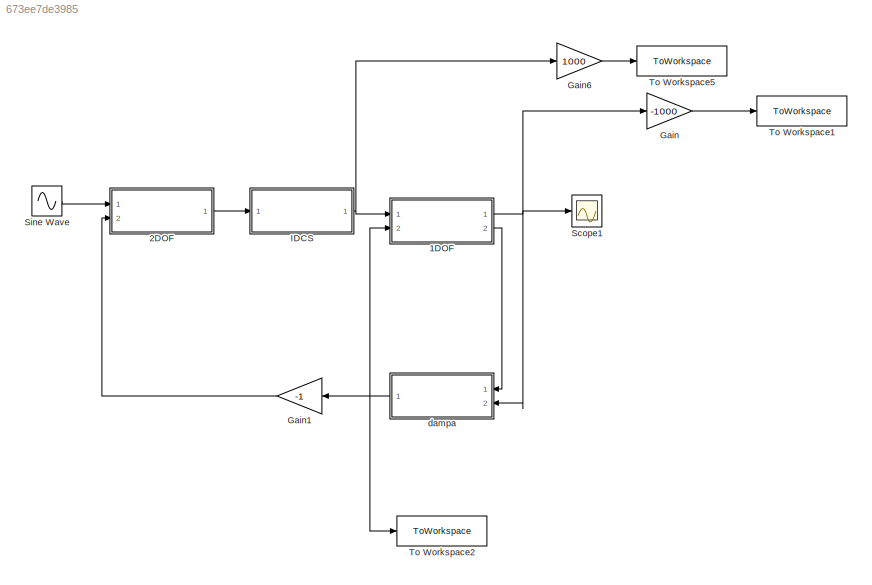
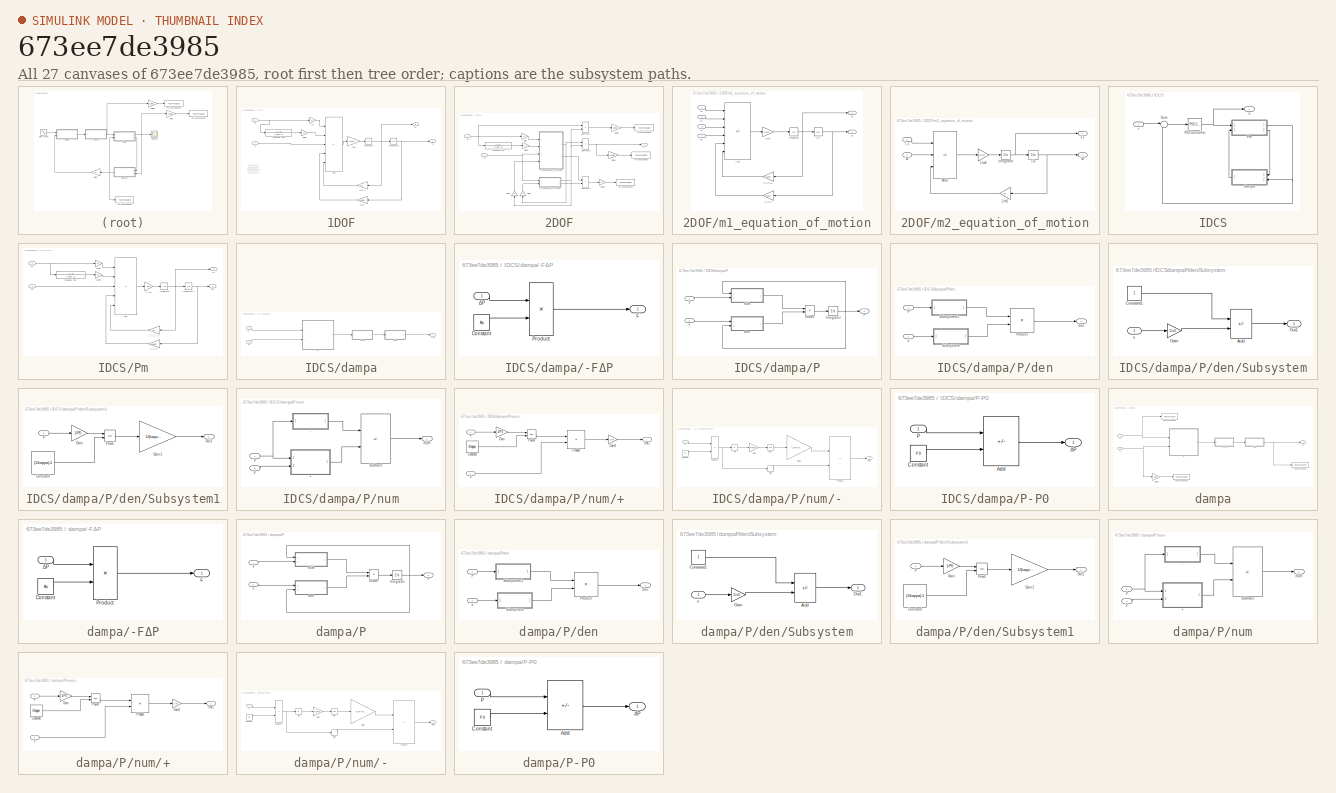
[diagram: thumbnail index - all 27 canvases of the model, root first then tree order]
MODEL slx_673ee7de3985
KIND model
CONFIG AbsTol = auto
CONFIG EnableMultiTasking = off
CONFIG FixedStep = Step_Time
CONFIG MaxStep = auto
CONFIG MinStep = auto
CONFIG RelTol = 1e-3
CONFIG SampleTimeConstraint = Unconstrained
CONFIG Solver = ode4
CONFIG SolverName = ode4
CONFIG StartTime = 0.0
CONFIG StopTime = t_end
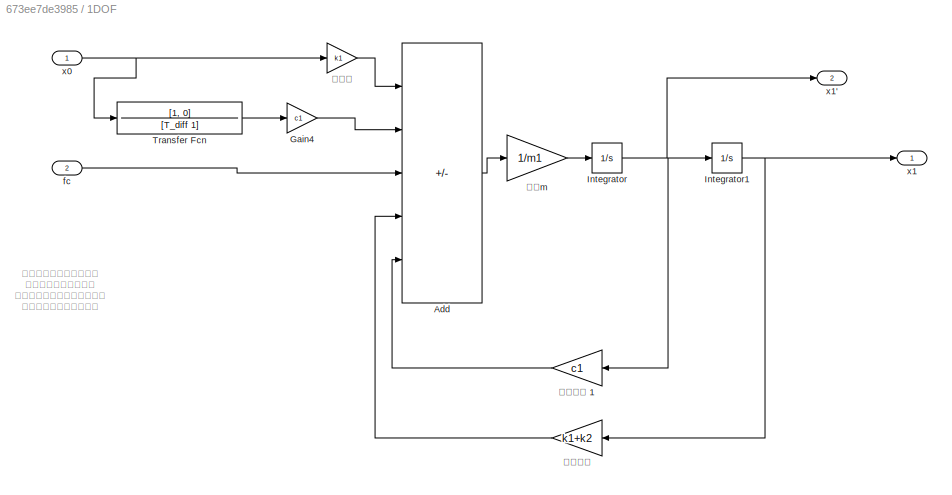
BLOCK [SubSystem] 1DOF
  Ports = [2, 2]
  RequestExecContextInheritance = off
BLOCK [Sum] 1DOF/Add
  IconShape = rectangular
  Inputs = ++---
  Ports = [5, 1]
BLOCK [Gain] 1DOF/Gain4
  Gain = c1
BLOCK [Integrator] 1DOF/Integrator
  Ports = [1, 1]
BLOCK [Integrator] 1DOF/Integrator1
  Ports = [1, 1]
BLOCK [TransferFcn] 1DOF/Transfer Fcn
  Denominator = [T_diff 1]
  NameLocation = right
  Numerator = [1, 0]
BLOCK [Inport] 1DOF/fc
  Port = 2
BLOCK [Inport] 1DOF/x0
BLOCK [Outport] 1DOF/x1
BLOCK [Outport] 1DOF/x1'
  Port = 2
BLOCK [Gain] 1DOF/ばね下
  Gain = k1
BLOCK [Gain] 1DOF/ばね定数 
  Gain = k1+k2
BLOCK [Gain] 1DOF/ばね定数 1
  Gain = c1
BLOCK [Gain] 1DOF/質量m
  Gain = 1/m1
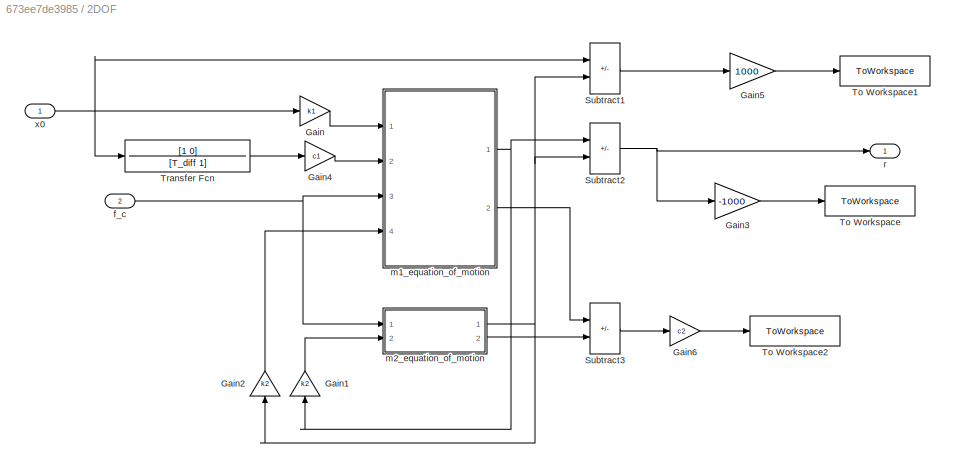
BLOCK [SubSystem] 2DOF
  Ports = [2, 1]
  RequestExecContextInheritance = off
BLOCK [Gain] 2DOF/Gain
  Gain = k1
BLOCK [Gain] 2DOF/Gain1
  Gain = k2
  NameLocation = right
BLOCK [Gain] 2DOF/Gain2
  Gain = k2
  NameLocation = right
BLOCK [Gain] 2DOF/Gain3
  Gain = -1000
BLOCK [Gain] 2DOF/Gain4
  Gain = c1
BLOCK [Gain] 2DOF/Gain5
  Gain = 1000
BLOCK [Gain] 2DOF/Gain6
  Gain = c2
BLOCK [Sum] 2DOF/Subtract1
  IconShape = rectangular
  Inputs = +-
  Ports = [2, 1]
BLOCK [Sum] 2DOF/Subtract2
  IconShape = rectangular
  Inputs = +-
  Ports = [2, 1]
BLOCK [Sum] 2DOF/Subtract3
  IconShape = rectangular
  Inputs = -+
  Ports = [2, 1]
BLOCK [ToWorkspace] 2DOF/To Workspace
  FixptAsFi = on
  MaxDataPoints = inf
  Ports = [1]
  SampleTime = -1
  SaveFormat = Timeseries
  VariableName = r
BLOCK [ToWorkspace] 2DOF/To Workspace1
  FixptAsFi = on
  MaxDataPoints = inf
  Ports = [1]
  SampleTime = -1
  SaveFormat = Timeseries
  VariableName = u_rela
BLOCK [ToWorkspace] 2DOF/To Workspace2
  FixptAsFi = on
  MaxDataPoints = inf
  Ports = [1]
  SampleTime = -1
  SaveFormat = Timeseries
  VariableName = F_analysis
BLOCK [TransferFcn] 2DOF/Transfer Fcn
  Denominator = [T_diff 1]
  Numerator = [1 0]
BLOCK [Inport] 2DOF/f_c
  Port = 2
BLOCK [SubSystem] 2DOF/m1_equation_of_motion
  Ports = [4, 2]
  RequestExecContextInheritance = off
BLOCK [Gain] 2DOF/m1_equation_of_motion/1//m1
  Gain = 1/m1
BLOCK [Integrator] 2DOF/m1_equation_of_motion/1//s
  Ports = [1, 1]
BLOCK [Sum] 2DOF/m1_equation_of_motion/Add
  IconShape = rectangular
  Inputs = ++++--
  Ports = [6, 1]
BLOCK [Inport] 2DOF/m1_equation_of_motion/c1
  Port = 2
BLOCK [Inport] 2DOF/m1_equation_of_motion/fc
  Port = 3
BLOCK [Integrator] 2DOF/m1_equation_of_motion/integrator
  Ports = [1, 1]
BLOCK [Inport] 2DOF/m1_equation_of_motion/k1
  IconDisplay = Port number and signal name
BLOCK [Inport] 2DOF/m1_equation_of_motion/k2
  Port = 4
BLOCK [Outport] 2DOF/m1_equation_of_motion/x'1
  Port = 2
BLOCK [Outport] 2DOF/m1_equation_of_motion/x1
BLOCK [Gain] 2DOF/m1_equation_of_motion/ばね定数
  Gain = k1+k2
BLOCK [Gain] 2DOF/m1_equation_of_motion/ばね定数1
  Gain = c1+c2
BLOCK [SubSystem] 2DOF/m2_equation_of_motion
  Ports = [2, 2]
  RequestExecContextInheritance = off
BLOCK [Gain] 2DOF/m2_equation_of_motion/1//m1
  Gain = k2
BLOCK [Gain] 2DOF/m2_equation_of_motion/1//m2
  Gain = 1/m2
BLOCK [Integrator] 2DOF/m2_equation_of_motion/1//s
  Ports = [1, 1]
BLOCK [Sum] 2DOF/m2_equation_of_motion/Add
  IconShape = rectangular
  Inputs = -+-
  Ports = [3, 1]
BLOCK [Inport] 2DOF/m2_equation_of_motion/f_c
  IconDisplay = Port number and signal name
BLOCK [Integrator] 2DOF/m2_equation_of_motion/integrator
  Ports = [1, 1]
BLOCK [Inport] 2DOF/m2_equation_of_motion/k2 
  Port = 2
BLOCK [Outport] 2DOF/m2_equation_of_motion/x'2
  Port = 2
BLOCK [Outport] 2DOF/m2_equation_of_motion/x2
BLOCK [Outport] 2DOF/r
BLOCK [Inport] 2DOF/x0
BLOCK [Gain] Gain
  Gain = -1000
BLOCK [Gain] Gain1
  Gain = -1
BLOCK [Gain] Gain6
  Gain = 1000
BLOCK [SubSystem] IDCS
  Ports = [1, 1]
  RequestExecContextInheritance = off
BLOCK [Reference] IDCS/PID Controller  REF=simulink/Continuous/PID Controller
  Ports = [1, 1]
  SourceBlock = simulink/Continuous/PID Controller
  SourceProductBaseCode = SL
  SourceType = PID 1dof
BLOCK [SubSystem] IDCS/Pm
  Ports = [2, 2]
  RequestExecContextInheritance = off
BLOCK [Sum] IDCS/Pm/Add
  IconShape = rectangular
  Inputs = ++---
  Ports = [5, 1]
BLOCK [Gain] IDCS/Pm/Gain
  Gain = k1
BLOCK [Gain] IDCS/Pm/Gain4
  Gain = c1
BLOCK [Integrator] IDCS/Pm/Integrator
  Ports = [1, 1]
BLOCK [Integrator] IDCS/Pm/Integrator1
  Ports = [1, 1]
BLOCK [TransferFcn] IDCS/Pm/Transfer Fcn
  Denominator = [T_diff 1]
  Numerator = [1, 0]
BLOCK [Inport] IDCS/Pm/fc
  Port = 2
BLOCK [Inport] IDCS/Pm/x0
BLOCK [Outport] IDCS/Pm/x1
BLOCK [Outport] IDCS/Pm/x1'
  Port = 2
BLOCK [Gain] IDCS/Pm/ばね定数 
  Gain = k1+k2
BLOCK [Gain] IDCS/Pm/ばね定数 1
  Gain = c1
BLOCK [Gain] IDCS/Pm/質量m
  Gain = 1/m1
BLOCK [Sum] IDCS/Sum
  Inputs = |+-
  Ports = [2, 1]
BLOCK [SubSystem] IDCS/dampa
  Ports = [2, 1]
  RequestExecContextInheritance = off
BLOCK [SubSystem] IDCS/dampa/-FΔP
  Ports = [1, 1]
  RequestExecContextInheritance = off
BLOCK [Constant] IDCS/dampa/-FΔP/Constant
  Value = Ap
BLOCK [Outport] IDCS/dampa/-FΔP/F
BLOCK [Product] IDCS/dampa/-FΔP/Product
  Ports = [2, 1]
BLOCK [Inport] IDCS/dampa/-FΔP/ΔP
BLOCK [SubSystem] IDCS/dampa/P
  Ports = [2, 1]
  RequestExecContextInheritance = off
BLOCK [SubSystem] IDCS/dampa/P-P0
  Ports = [1, 1]
  RequestExecContextInheritance = off
BLOCK [Sum] IDCS/dampa/P-P0/Add
  IconShape = rectangular
  Inputs = +-
  Ports = [2, 1]
BLOCK [Constant] IDCS/dampa/P-P0/Constant
  Value = P0
BLOCK [Inport] IDCS/dampa/P-P0/P
BLOCK [Outport] IDCS/dampa/P-P0/ΔP
BLOCK [Product] IDCS/dampa/P/Divide
  Inputs = */
  Ports = [2, 1]
BLOCK [Integrator] IDCS/dampa/P/Integrator
  InitialCondition = P0
  Ports = [1, 1]
BLOCK [Outport] IDCS/dampa/P/P
BLOCK [Inport] IDCS/dampa/P/V
BLOCK [SubSystem] IDCS/dampa/P/den
  Ports = [2, 1]
  RequestExecContextInheritance = off
BLOCK [Inport] IDCS/dampa/P/den/P
  Port = 2
BLOCK [Product] IDCS/dampa/P/den/Product
  Ports = [2, 1]
BLOCK [SubSystem] IDCS/dampa/P/den/Subsystem
  Ports = [1, 1]
  RequestExecContextInheritance = off
BLOCK [Sum] IDCS/dampa/P/den/Subsystem/Add
  IconShape = rectangular
  Inputs = +-
  Ports = [2, 1]
BLOCK [Constant] IDCS/dampa/P/den/Subsystem/Constant1
BLOCK [Gain] IDCS/dampa/P/den/Subsystem/Gain
  Gain = 1/x0
BLOCK [Outport] IDCS/dampa/P/den/Subsystem/Out1
BLOCK [Inport] IDCS/dampa/P/den/Subsystem/x
BLOCK [SubSystem] IDCS/dampa/P/den/Subsystem1
  Ports = [1, 1]
  RequestExecContextInheritance = off
BLOCK [Constant] IDCS/dampa/P/den/Subsystem1/Constant
  Value = (1/kappa)-1
BLOCK [Gain] IDCS/dampa/P/den/Subsystem1/Gain
  Gain = 1/P0
BLOCK [Gain] IDCS/dampa/P/den/Subsystem1/Gain1
  Gain = 1/(kappa*P0)
BLOCK [Outport] IDCS/dampa/P/den/Subsystem1/Out1
BLOCK [Inport] IDCS/dampa/P/den/Subsystem1/P
BLOCK [Math] IDCS/dampa/P/den/Subsystem1/Pow1
  Operator = pow
  OutputSignalType = real
  Ports = [2, 1]
  SignedPower = on
BLOCK [Outport] IDCS/dampa/P/den/den
BLOCK [Inport] IDCS/dampa/P/den/x
BLOCK [SubSystem] IDCS/dampa/P/num
  Ports = [2, 1]
  RequestExecContextInheritance = off
BLOCK [SubSystem] IDCS/dampa/P/num/+
  Ports = [2, 1]
  RequestExecContextInheritance = off
BLOCK [Constant] IDCS/dampa/P/num/+/Constant
  Value = 1/kappa
BLOCK [Gain] IDCS/dampa/P/num/+/Gain
  Gain = 1/P0
BLOCK [Gain] IDCS/dampa/P/num/+/Gain1
  Gain = 1/x0
BLOCK [Outport] IDCS/dampa/P/num/+/Out1
BLOCK [Inport] IDCS/dampa/P/num/+/P
BLOCK [Math] IDCS/dampa/P/num/+/Power
  Operator = pow
  OutputSignalType = real
  Ports = [2, 1]
  SignedPower = on
BLOCK [Product] IDCS/dampa/P/num/+/Product
  Ports = [2, 1]
BLOCK [Inport] IDCS/dampa/P/num/+/V
  Port = 2
BLOCK [SubSystem] IDCS/dampa/P/num/-
  Ports = [1, 1]
  RequestExecContextInheritance = off
BLOCK [Abs] IDCS/dampa/P/num/-/Abs
  SaturateOnIntegerOverflow = off
BLOCK [Constant] IDCS/dampa/P/num/-/Constant
  Value = P0
BLOCK [Gain] IDCS/dampa/P/num/-/Gain
  Gain = 2*row0
BLOCK [Gain] IDCS/dampa/P/num/-/Gain1
  Gain = (Cor*Aor)/(row0*Ap*x0)
BLOCK [Outport] IDCS/dampa/P/num/-/Out1
BLOCK [Inport] IDCS/dampa/P/num/-/P
BLOCK [Product] IDCS/dampa/P/num/-/Product
  Ports = [2, 1]
BLOCK [Signum] IDCS/dampa/P/num/-/Sign
BLOCK [Sqrt] IDCS/dampa/P/num/-/Sqrt
BLOCK [Sum] IDCS/dampa/P/num/-/Subtract
  IconShape = rectangular
  Inputs = +-
  Ports = [2, 1]
BLOCK [Inport] IDCS/dampa/P/num/P
BLOCK [Sum] IDCS/dampa/P/num/Subtract
  IconShape = rectangular
  Inputs = -+
  Ports = [2, 1]
BLOCK [Inport] IDCS/dampa/P/num/V
  Port = 2
BLOCK [Outport] IDCS/dampa/P/num/num
BLOCK [Inport] IDCS/dampa/P/x
  Port = 2
BLOCK [Outport] IDCS/dampa/f_c
BLOCK [Inport] IDCS/dampa/x1
  Port = 2
BLOCK [Inport] IDCS/dampa/x1'
BLOCK [Inport] IDCS/r
BLOCK [Outport] IDCS/u
BLOCK [Scope] Scope1
  Floating = off
  NumInputPorts = 1
  Ports = [1]
  ScopeSpecificationString = Simulink.scopes.TimeScopeBlockCfg('CurrentConfiguration', extmgr.ConfigurationSet(extmgr.Configuration('Core','General UI',true),extmgr.Configuration('Core','Source UI',true),extmgr.Configuration('Sources','WiredSimulink',true),extmgr.Configuration('Visuals','Time Domain',true,'SerializedDisplays',{struct('MinYLimReal','-126.80577','MaxYLimReal','33.38913','YLabelReal','','MinYLimMag',' 0.00000','...<+1363ch>
BLOCK [Sin] Sine Wave
  Amplitude = A
  Bias = B
  Frequency = Hz
  Ports = [0, 1]
  SampleTime = 0
BLOCK [ToWorkspace] To Workspace1
  FixptAsFi = on
  MaxDataPoints = inf
  Ports = [1]
  SampleTime = -1
  SaveFormat = Timeseries
  VariableName = x
BLOCK [ToWorkspace] To Workspace2
  FixptAsFi = on
  MaxDataPoints = inf
  Ports = [1]
  SampleTime = -1
  SaveFormat = Timeseries
  VariableName = F_hard
BLOCK [ToWorkspace] To Workspace5
  FixptAsFi = on
  MaxDataPoints = inf
  Ports = [1]
  SampleTime = -1
  SaveFormat = Timeseries
  VariableName = u
BLOCK [SubSystem] dampa
  Ports = [2, 1]
  RequestExecContextInheritance = off
BLOCK [SubSystem] dampa/-FΔP
  Ports = [1, 1]
  RequestExecContextInheritance = off
BLOCK [Constant] dampa/-FΔP/Constant
  Value = Ap
BLOCK [Outport] dampa/-FΔP/F
BLOCK [Product] dampa/-FΔP/Product
  Ports = [2, 1]
BLOCK [Inport] dampa/-FΔP/ΔP
BLOCK [Gain] dampa/Gain3
  Gain = 1000
BLOCK [SubSystem] dampa/P
  Ports = [2, 1]
  RequestExecContextInheritance = off
BLOCK [SubSystem] dampa/P-P0
  Ports = [1, 1]
  RequestExecContextInheritance = off
BLOCK [Sum] dampa/P-P0/Add
  IconShape = rectangular
  Inputs = +-
  Ports = [2, 1]
BLOCK [Constant] dampa/P-P0/Constant
  Value = P0
BLOCK [Inport] dampa/P-P0/P
BLOCK [Outport] dampa/P-P0/ΔP
BLOCK [Product] dampa/P/Divide
  Inputs = */
  Ports = [2, 1]
BLOCK [Integrator] dampa/P/Integrator
  InitialCondition = P0
  Ports = [1, 1]
BLOCK [Outport] dampa/P/P
BLOCK [Inport] dampa/P/V
BLOCK [SubSystem] dampa/P/den
  Ports = [2, 1]
  RequestExecContextInheritance = off
BLOCK [Inport] dampa/P/den/P
  Port = 2
BLOCK [Product] dampa/P/den/Product
  Ports = [2, 1]
BLOCK [SubSystem] dampa/P/den/Subsystem
  Ports = [1, 1]
  RequestExecContextInheritance = off
BLOCK [Sum] dampa/P/den/Subsystem/Add
  IconShape = rectangular
  Inputs = +-
  Ports = [2, 1]
BLOCK [Constant] dampa/P/den/Subsystem/Constant1
BLOCK [Gain] dampa/P/den/Subsystem/Gain
  Gain = 1/x0
BLOCK [Outport] dampa/P/den/Subsystem/Out1
BLOCK [Inport] dampa/P/den/Subsystem/x
BLOCK [SubSystem] dampa/P/den/Subsystem1
  Ports = [1, 1]
  RequestExecContextInheritance = off
BLOCK [Constant] dampa/P/den/Subsystem1/Constant
  Value = (1/kappa)-1
BLOCK [Gain] dampa/P/den/Subsystem1/Gain
  Gain = 1/P0
BLOCK [Gain] dampa/P/den/Subsystem1/Gain1
  Gain = 1/(kappa*P0)
BLOCK [Outport] dampa/P/den/Subsystem1/Out1
BLOCK [Inport] dampa/P/den/Subsystem1/P
BLOCK [Math] dampa/P/den/Subsystem1/Pow1
  Operator = pow
  OutputSignalType = real
  Ports = [2, 1]
  SignedPower = on
BLOCK [Outport] dampa/P/den/den
BLOCK [Inport] dampa/P/den/x
BLOCK [SubSystem] dampa/P/num
  Ports = [2, 1]
  RequestExecContextInheritance = off
BLOCK [SubSystem] dampa/P/num/+
  Ports = [2, 1]
  RequestExecContextInheritance = off
BLOCK [Constant] dampa/P/num/+/Constant
  Value = 1/kappa
BLOCK [Gain] dampa/P/num/+/Gain
  Gain = 1/P0
BLOCK [Gain] dampa/P/num/+/Gain1
  Gain = 1/x0
BLOCK [Outport] dampa/P/num/+/Out1
BLOCK [Inport] dampa/P/num/+/P
BLOCK [Math] dampa/P/num/+/Power
  Operator = pow
  OutputSignalType = real
  Ports = [2, 1]
  SignedPower = on
BLOCK [Product] dampa/P/num/+/Product
  Ports = [2, 1]
BLOCK [Inport] dampa/P/num/+/V
  Port = 2
BLOCK [SubSystem] dampa/P/num/-
  Ports = [1, 1]
  RequestExecContextInheritance = off
BLOCK [Abs] dampa/P/num/-/Abs
  SaturateOnIntegerOverflow = off
BLOCK [Constant] dampa/P/num/-/Constant
  Value = P0
BLOCK [Gain] dampa/P/num/-/Gain
  Gain = 2*row0
BLOCK [Gain] dampa/P/num/-/Gain1
  Gain = (Cor*Aor)/(row0*Ap*x0)
BLOCK [Outport] dampa/P/num/-/Out1
BLOCK [Inport] dampa/P/num/-/P
BLOCK [Product] dampa/P/num/-/Product
  Ports = [2, 1]
BLOCK [Signum] dampa/P/num/-/Sign
BLOCK [Sqrt] dampa/P/num/-/Sqrt
BLOCK [Sum] dampa/P/num/-/Subtract
  IconShape = rectangular
  Inputs = +-
  Ports = [2, 1]
BLOCK [Inport] dampa/P/num/P
BLOCK [Sum] dampa/P/num/Subtract
  IconShape = rectangular
  Inputs = -+
  Ports = [2, 1]
BLOCK [Inport] dampa/P/num/V
  Port = 2
BLOCK [Outport] dampa/P/num/num
BLOCK [Inport] dampa/P/x
  Port = 2
BLOCK [ToWorkspace] dampa/To Workspace
  FixptAsFi = on
  MaxDataPoints = inf
  Ports = [1]
  SampleTime = -1
  SaveFormat = Timeseries
  VariableName = F_IDCS
BLOCK [ToWorkspace] dampa/To Workspace1
  FixptAsFi = on
  MaxDataPoints = inf
  Ports = [1]
  SampleTime = -1
  SaveFormat = Timeseries
  VariableName = X
BLOCK [ToWorkspace] dampa/To Workspace2
  FixptAsFi = on
  MaxDataPoints = inf
  Ports = [1]
  SampleTime = -1
  SaveFormat = Timeseries
  VariableName = V
BLOCK [Outport] dampa/f_c
BLOCK [Inport] dampa/x1
  Port = 2
BLOCK [Inport] dampa/x1'
ANNOTATION 1DOF: ばね下ダンパを入れれば エラーは解決するよ～ モデル化誤差のせいなのかも 検証したほうがいいかも
LINE 1DOF/Add:1 -> 1DOF/質量m:1
LINE 1DOF/Gain4:1 -> 1DOF/Add:2
NET 1DOF/Integrator1:1 -> 1DOF/x1:1, 1DOF/ばね定数 :1
NET 1DOF/Integrator:1 -> 1DOF/Integrator1:1, 1DOF/x1':1, 1DOF/ばね定数 1:1
LINE 1DOF/Transfer Fcn:1 -> 1DOF/Gain4:1
LINE 1DOF/fc:1 -> 1DOF/Add:3
NET 1DOF/x0:1 -> 1DOF/Transfer Fcn:1, 1DOF/ばね下:1
LINE 1DOF/ばね下:1 -> 1DOF/Add:1
LINE 1DOF/ばね定数 1:1 -> 1DOF/Add:5
LINE 1DOF/ばね定数 :1 -> 1DOF/Add:4
LINE 1DOF/質量m:1 -> 1DOF/Integrator:1
NET 1DOF:1 -> Gain:1, Scope1:1, dampa:2
LINE 1DOF:2 -> dampa:1
LINE 2DOF/Gain1:1 -> 2DOF/m2_equation_of_motion:2
LINE 2DOF/Gain2:1 -> 2DOF/m1_equation_of_motion:4
LINE 2DOF/Gain3:1 -> 2DOF/To Workspace:1
LINE 2DOF/Gain4:1 -> 2DOF/m1_equation_of_motion:2
LINE 2DOF/Gain5:1 -> 2DOF/To Workspace1:1
LINE 2DOF/Gain6:1 -> 2DOF/To Workspace2:1
LINE 2DOF/Gain:1 -> 2DOF/m1_equation_of_motion:1
LINE 2DOF/Subtract1:1 -> 2DOF/Gain5:1
NET 2DOF/Subtract2:1 -> 2DOF/Gain3:1, 2DOF/r:1
LINE 2DOF/Subtract3:1 -> 2DOF/Gain6:1
LINE 2DOF/Transfer Fcn:1 -> 2DOF/Gain4:1
NET 2DOF/f_c:1 -> 2DOF/m1_equation_of_motion:3, 2DOF/m2_equation_of_motion:1
LINE 2DOF/m1_equation_of_motion/1//m1:1 -> 2DOF/m1_equation_of_motion/integrator:1
NET 2DOF/m1_equation_of_motion/1//s:1 -> 2DOF/m1_equation_of_motion/x1:1, 2DOF/m1_equation_of_motion/ばね定数:1
LINE 2DOF/m1_equation_of_motion/Add:1 -> 2DOF/m1_equation_of_motion/1//m1:1
LINE 2DOF/m1_equation_of_motion/c1:1 -> 2DOF/m1_equation_of_motion/Add:2
LINE 2DOF/m1_equation_of_motion/fc:1 -> 2DOF/m1_equation_of_motion/Add:3
NET 2DOF/m1_equation_of_motion/integrator:1 -> 2DOF/m1_equation_of_motion/1//s:1, 2DOF/m1_equation_of_motion/x'1:1, 2DOF/m1_equation_of_motion/ばね定数1:1
LINE 2DOF/m1_equation_of_motion/k1:1 -> 2DOF/m1_equation_of_motion/Add:1
LINE 2DOF/m1_equation_of_motion/k2:1 -> 2DOF/m1_equation_of_motion/Add:4
LINE 2DOF/m1_equation_of_motion/ばね定数1:1 -> 2DOF/m1_equation_of_motion/Add:6
LINE 2DOF/m1_equation_of_motion/ばね定数:1 -> 2DOF/m1_equation_of_motion/Add:5
NET 2DOF/m1_equation_of_motion:1 -> 2DOF/Gain1:1, 2DOF/Subtract2:1
LINE 2DOF/m1_equation_of_motion:2 -> 2DOF/Subtract3:1
LINE 2DOF/m2_equation_of_motion/1//m1:1 -> 2DOF/m2_equation_of_motion/Add:3
LINE 2DOF/m2_equation_of_motion/1//m2:1 -> 2DOF/m2_equation_of_motion/integrator:1
NET 2DOF/m2_equation_of_motion/1//s:1 -> 2DOF/m2_equation_of_motion/1//m1:1, 2DOF/m2_equation_of_motion/x2:1
LINE 2DOF/m2_equation_of_motion/Add:1 -> 2DOF/m2_equation_of_motion/1//m2:1
LINE 2DOF/m2_equation_of_motion/f_c:1 -> 2DOF/m2_equation_of_motion/Add:1
NET 2DOF/m2_equation_of_motion/integrator:1 -> 2DOF/m2_equation_of_motion/1//s:1, 2DOF/m2_equation_of_motion/x'2:1
LINE 2DOF/m2_equation_of_motion/k2 :1 -> 2DOF/m2_equation_of_motion/Add:2
NET 2DOF/m2_equation_of_motion:1 -> 2DOF/Gain2:1, 2DOF/Subtract1:2, 2DOF/Subtract2:2
LINE 2DOF/m2_equation_of_motion:2 -> 2DOF/Subtract3:2
NET 2DOF/x0:1 -> 2DOF/Gain:1, 2DOF/Subtract1:1, 2DOF/Transfer Fcn:1
LINE 2DOF:1 -> IDCS:1
LINE Gain1:1 -> 2DOF:2
LINE Gain6:1 -> To Workspace5:1
LINE Gain:1 -> To Workspace1:1
NET IDCS/PID Controller:1 -> IDCS/Pm:1, IDCS/u:1
LINE IDCS/Pm/Add:1 -> IDCS/Pm/質量m:1
LINE IDCS/Pm/Gain4:1 -> IDCS/Pm/Add:2
LINE IDCS/Pm/Gain:1 -> IDCS/Pm/Add:1
NET IDCS/Pm/Integrator1:1 -> IDCS/Pm/x1:1, IDCS/Pm/ばね定数 :1
NET IDCS/Pm/Integrator:1 -> IDCS/Pm/Integrator1:1, IDCS/Pm/x1':1, IDCS/Pm/ばね定数 1:1
LINE IDCS/Pm/Transfer Fcn:1 -> IDCS/Pm/Gain4:1
LINE IDCS/Pm/fc:1 -> IDCS/Pm/Add:3
NET IDCS/Pm/x0:1 -> IDCS/Pm/Gain:1, IDCS/Pm/Transfer Fcn:1
LINE IDCS/Pm/ばね定数 1:1 -> IDCS/Pm/Add:5
LINE IDCS/Pm/ばね定数 :1 -> IDCS/Pm/Add:4
LINE IDCS/Pm/質量m:1 -> IDCS/Pm/Integrator:1
NET IDCS/Pm:1 -> IDCS/Sum:2, IDCS/dampa:2
LINE IDCS/Pm:2 -> IDCS/dampa:1
LINE IDCS/Sum:1 -> IDCS/PID Controller:1
LINE IDCS/dampa/-FΔP/Constant:1 -> IDCS/dampa/-FΔP/Product:2
LINE IDCS/dampa/-FΔP/Product:1 -> IDCS/dampa/-FΔP/F:1
LINE IDCS/dampa/-FΔP/ΔP:1 -> IDCS/dampa/-FΔP/Product:1
LINE IDCS/dampa/-FΔP:1 -> IDCS/dampa/f_c:1
LINE IDCS/dampa/P-P0/Add:1 -> IDCS/dampa/P-P0/ΔP:1
LINE IDCS/dampa/P-P0/Constant:1 -> IDCS/dampa/P-P0/Add:2
LINE IDCS/dampa/P-P0/P:1 -> IDCS/dampa/P-P0/Add:1
LINE IDCS/dampa/P-P0:1 -> IDCS/dampa/-FΔP:1
LINE IDCS/dampa/P/Divide:1 -> IDCS/dampa/P/Integrator:1
NET IDCS/dampa/P/Integrator:1 -> IDCS/dampa/P/P:1, IDCS/dampa/P/den:2, IDCS/dampa/P/num:1
LINE IDCS/dampa/P/V:1 -> IDCS/dampa/P/num:2
LINE IDCS/dampa/P/den/P:1 -> IDCS/dampa/P/den/Subsystem1:1
LINE IDCS/dampa/P/den/Product:1 -> IDCS/dampa/P/den/den:1
LINE IDCS/dampa/P/den/Subsystem/Add:1 -> IDCS/dampa/P/den/Subsystem/Out1:1
LINE IDCS/dampa/P/den/Subsystem/Constant1:1 -> IDCS/dampa/P/den/Subsystem/Add:1
LINE IDCS/dampa/P/den/Subsystem/Gain:1 -> IDCS/dampa/P/den/Subsystem/Add:2
LINE IDCS/dampa/P/den/Subsystem/x:1 -> IDCS/dampa/P/den/Subsystem/Gain:1
LINE IDCS/dampa/P/den/Subsystem1/Constant:1 -> IDCS/dampa/P/den/Subsystem1/Pow1:2
LINE IDCS/dampa/P/den/Subsystem1/Gain1:1 -> IDCS/dampa/P/den/Subsystem1/Out1:1
LINE IDCS/dampa/P/den/Subsystem1/Gain:1 -> IDCS/dampa/P/den/Subsystem1/Pow1:1
LINE IDCS/dampa/P/den/Subsystem1/P:1 -> IDCS/dampa/P/den/Subsystem1/Gain:1
LINE IDCS/dampa/P/den/Subsystem1/Pow1:1 -> IDCS/dampa/P/den/Subsystem1/Gain1:1
LINE IDCS/dampa/P/den/Subsystem1:1 -> IDCS/dampa/P/den/Product:1
LINE IDCS/dampa/P/den/Subsystem:1 -> IDCS/dampa/P/den/Product:2
LINE IDCS/dampa/P/den/x:1 -> IDCS/dampa/P/den/Subsystem:1
LINE IDCS/dampa/P/den:1 -> IDCS/dampa/P/Divide:2
LINE IDCS/dampa/P/num/+/Constant:1 -> IDCS/dampa/P/num/+/Power:2
LINE IDCS/dampa/P/num/+/Gain1:1 -> IDCS/dampa/P/num/+/Out1:1
LINE IDCS/dampa/P/num/+/Gain:1 -> IDCS/dampa/P/num/+/Power:1
LINE IDCS/dampa/P/num/+/P:1 -> IDCS/dampa/P/num/+/Gain:1
LINE IDCS/dampa/P/num/+/Power:1 -> IDCS/dampa/P/num/+/Product:1
LINE IDCS/dampa/P/num/+/Product:1 -> IDCS/dampa/P/num/+/Gain1:1
LINE IDCS/dampa/P/num/+/V:1 -> IDCS/dampa/P/num/+/Product:2
LINE IDCS/dampa/P/num/+:1 -> IDCS/dampa/P/num/Subtract:2
LINE IDCS/dampa/P/num/-/Abs:1 -> IDCS/dampa/P/num/-/Gain:1
LINE IDCS/dampa/P/num/-/Constant:1 -> IDCS/dampa/P/num/-/Subtract:2
LINE IDCS/dampa/P/num/-/Gain1:1 -> IDCS/dampa/P/num/-/Product:1
LINE IDCS/dampa/P/num/-/Gain:1 -> IDCS/dampa/P/num/-/Sqrt:1
LINE IDCS/dampa/P/num/-/P:1 -> IDCS/dampa/P/num/-/Subtract:1
LINE IDCS/dampa/P/num/-/Product:1 -> IDCS/dampa/P/num/-/Out1:1
LINE IDCS/dampa/P/num/-/Sign:1 -> IDCS/dampa/P/num/-/Product:2
LINE IDCS/dampa/P/num/-/Sqrt:1 -> IDCS/dampa/P/num/-/Gain1:1
NET IDCS/dampa/P/num/-/Subtract:1 -> IDCS/dampa/P/num/-/Abs:1, IDCS/dampa/P/num/-/Sign:1
LINE IDCS/dampa/P/num/-:1 -> IDCS/dampa/P/num/Subtract:1
NET IDCS/dampa/P/num/P:1 -> IDCS/dampa/P/num/+:1, IDCS/dampa/P/num/-:1
LINE IDCS/dampa/P/num/Subtract:1 -> IDCS/dampa/P/num/num:1
LINE IDCS/dampa/P/num/V:1 -> IDCS/dampa/P/num/+:2
LINE IDCS/dampa/P/num:1 -> IDCS/dampa/P/Divide:1
LINE IDCS/dampa/P/x:1 -> IDCS/dampa/P/den:1
LINE IDCS/dampa/P:1 -> IDCS/dampa/P-P0:1
LINE IDCS/dampa/x1':1 -> IDCS/dampa/P:1
LINE IDCS/dampa/x1:1 -> IDCS/dampa/P:2
LINE IDCS/dampa:1 -> IDCS/Pm:2
LINE IDCS/r:1 -> IDCS/Sum:1
NET IDCS:1 -> 1DOF:1, Gain6:1
LINE Sine Wave:1 -> 2DOF:1
LINE dampa/-FΔP/Constant:1 -> dampa/-FΔP/Product:2
LINE dampa/-FΔP/Product:1 -> dampa/-FΔP/F:1
LINE dampa/-FΔP/ΔP:1 -> dampa/-FΔP/Product:1
NET dampa/-FΔP:1 -> dampa/To Workspace:1, dampa/f_c:1
LINE dampa/Gain3:1 -> dampa/To Workspace1:1
LINE dampa/P-P0/Add:1 -> dampa/P-P0/ΔP:1
LINE dampa/P-P0/Constant:1 -> dampa/P-P0/Add:2
LINE dampa/P-P0/P:1 -> dampa/P-P0/Add:1
LINE dampa/P-P0:1 -> dampa/-FΔP:1
LINE dampa/P/Divide:1 -> dampa/P/Integrator:1
NET dampa/P/Integrator:1 -> dampa/P/P:1, dampa/P/den:2, dampa/P/num:1
LINE dampa/P/V:1 -> dampa/P/num:2
LINE dampa/P/den/P:1 -> dampa/P/den/Subsystem1:1
LINE dampa/P/den/Product:1 -> dampa/P/den/den:1
LINE dampa/P/den/Subsystem/Add:1 -> dampa/P/den/Subsystem/Out1:1
LINE dampa/P/den/Subsystem/Constant1:1 -> dampa/P/den/Subsystem/Add:1
LINE dampa/P/den/Subsystem/Gain:1 -> dampa/P/den/Subsystem/Add:2
LINE dampa/P/den/Subsystem/x:1 -> dampa/P/den/Subsystem/Gain:1
LINE dampa/P/den/Subsystem1/Constant:1 -> dampa/P/den/Subsystem1/Pow1:2
LINE dampa/P/den/Subsystem1/Gain1:1 -> dampa/P/den/Subsystem1/Out1:1
LINE dampa/P/den/Subsystem1/Gain:1 -> dampa/P/den/Subsystem1/Pow1:1
LINE dampa/P/den/Subsystem1/P:1 -> dampa/P/den/Subsystem1/Gain:1
LINE dampa/P/den/Subsystem1/Pow1:1 -> dampa/P/den/Subsystem1/Gain1:1
LINE dampa/P/den/Subsystem1:1 -> dampa/P/den/Product:1
LINE dampa/P/den/Subsystem:1 -> dampa/P/den/Product:2
LINE dampa/P/den/x:1 -> dampa/P/den/Subsystem:1
LINE dampa/P/den:1 -> dampa/P/Divide:2
LINE dampa/P/num/+/Constant:1 -> dampa/P/num/+/Power:2
LINE dampa/P/num/+/Gain1:1 -> dampa/P/num/+/Out1:1
LINE dampa/P/num/+/Gain:1 -> dampa/P/num/+/Power:1
LINE dampa/P/num/+/P:1 -> dampa/P/num/+/Gain:1
LINE dampa/P/num/+/Power:1 -> dampa/P/num/+/Product:1
LINE dampa/P/num/+/Product:1 -> dampa/P/num/+/Gain1:1
LINE dampa/P/num/+/V:1 -> dampa/P/num/+/Product:2
LINE dampa/P/num/+:1 -> dampa/P/num/Subtract:2
LINE dampa/P/num/-/Abs:1 -> dampa/P/num/-/Gain:1
LINE dampa/P/num/-/Constant:1 -> dampa/P/num/-/Subtract:2
LINE dampa/P/num/-/Gain1:1 -> dampa/P/num/-/Product:1
LINE dampa/P/num/-/Gain:1 -> dampa/P/num/-/Sqrt:1
LINE dampa/P/num/-/P:1 -> dampa/P/num/-/Subtract:1
LINE dampa/P/num/-/Product:1 -> dampa/P/num/-/Out1:1
LINE dampa/P/num/-/Sign:1 -> dampa/P/num/-/Product:2
LINE dampa/P/num/-/Sqrt:1 -> dampa/P/num/-/Gain1:1
NET dampa/P/num/-/Subtract:1 -> dampa/P/num/-/Abs:1, dampa/P/num/-/Sign:1
LINE dampa/P/num/-:1 -> dampa/P/num/Subtract:1
NET dampa/P/num/P:1 -> dampa/P/num/+:1, dampa/P/num/-:1
LINE dampa/P/num/Subtract:1 -> dampa/P/num/num:1
LINE dampa/P/num/V:1 -> dampa/P/num/+:2
LINE dampa/P/num:1 -> dampa/P/Divide:1
LINE dampa/P/x:1 -> dampa/P/den:1
LINE dampa/P:1 -> dampa/P-P0:1
NET dampa/x1':1 -> dampa/P:1, dampa/To Workspace2:1
NET dampa/x1:1 -> dampa/Gain3:1, dampa/P:2
NET dampa:1 -> 1DOF:2, Gain1:1, To Workspace2:1
note: NET lines group one-source signal fan-out (src -> all destinations, sorted); 1:1 wires keep LINE
